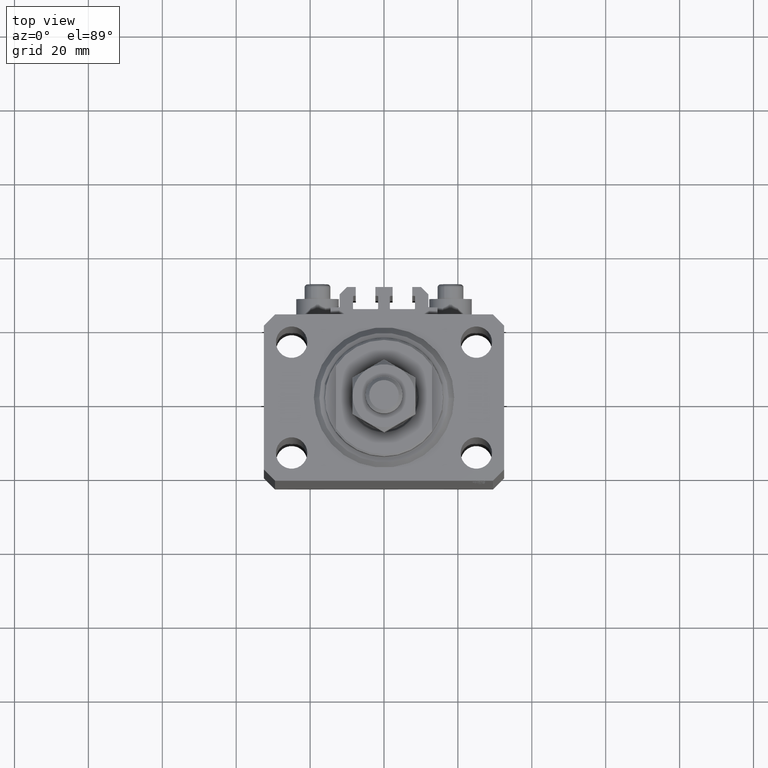
[diagram: clean part render]
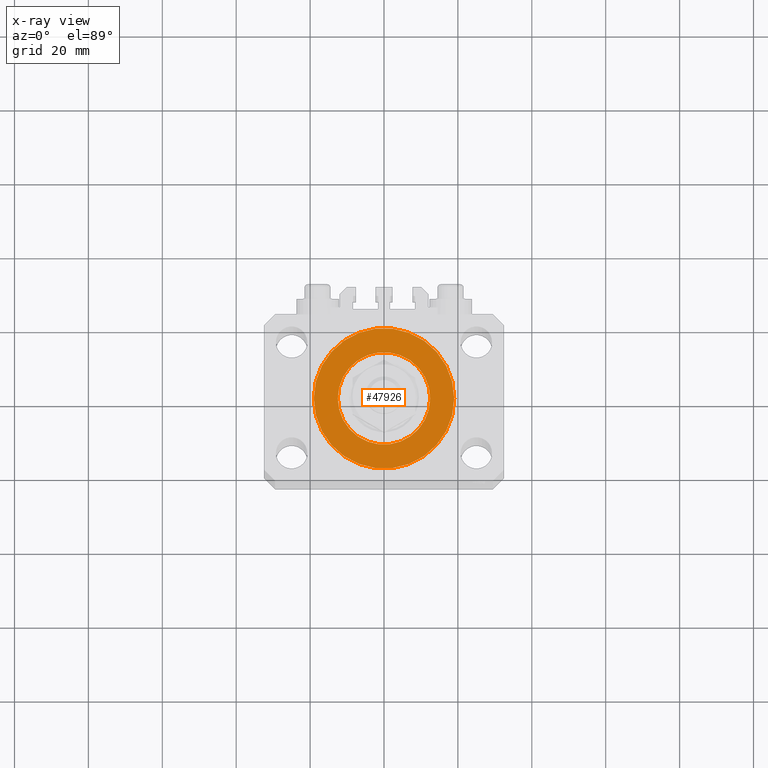
[diagram: x-ray — body ghosted, one internal face saturated and labeled with its STEP entity id]
A machine part, top view, then the same camera in x-ray: the body is ghosted and one INTERNAL B-rep face — a face not visible from any outside direction — is saturated and labeled: STEP entity #47926.
In plain terms, the highlighted planar face has unit normal (0, 0, 1).
Its self-contained STEP definition (entity closure, byte-faithful):
#50 = DIRECTION ( 'NONE',  ( 0.000000000000000000, 0.000000000000000000, 1.000000000000000000 ) ) ;
#1950 = DIRECTION ( 'NONE',  ( 0.000000000000000000, 0.000000000000000000, 1.000000000000000000 ) ) ;
#2215 = EDGE_CURVE ( 'NONE', #17318, #8432, #46412, .T. ) ;
#2605 = DIRECTION ( 'NONE',  ( 1.000000000000000000, 0.000000000000000000, 0.000000000000000000 ) ) ;
#3759 = CARTESIAN_POINT ( 'NONE',  ( 0.000000000000000000, 0.000000000000000000, -13.99999999999999822 ) ) ;
#6311 = DIRECTION ( 'NONE',  ( 0.000000000000000000, 0.000000000000000000, 1.000000000000000000 ) ) ;
#7948 = CIRCLE ( 'NONE', #47441, 12.50000000000000000 ) ;
#8432 = VERTEX_POINT ( 'NONE', #17461 ) ;
#9690 = AXIS2_PLACEMENT_3D ( 'NONE', #34755, #41016, #48681 ) ;
#9877 = FACE_OUTER_BOUND ( 'NONE', #25714, .T. ) ;
#11176 = DIRECTION ( 'NONE',  ( 1.000000000000000000, 0.000000000000000000, 0.000000000000000000 ) ) ;
#11831 = EDGE_CURVE ( 'NONE', #8432, #17318, #19192, .T. ) ;
#14063 = VERTEX_POINT ( 'NONE', #41044 ) ;
#16545 = CARTESIAN_POINT ( 'NONE',  ( 0.000000000000000000, 0.000000000000000000, -14.00000000000000000 ) ) ;
#16948 = AXIS2_PLACEMENT_3D ( 'NONE', #16545, #1950, #32354 ) ;
#17199 = AXIS2_PLACEMENT_3D ( 'NONE', #42075, #33932, #46021 ) ;
#17318 = VERTEX_POINT ( 'NONE', #37481 ) ;
#17461 = CARTESIAN_POINT ( 'NONE',  ( -19.00000000000000000, 2.326828918379970970E-15, -14.00000000000000000 ) ) ;
#19192 = CIRCLE ( 'NONE', #9690, 19.00000000000000000 ) ;
#20737 = PLANE ( 'NONE',  #16948 ) ;
#21381 = CARTESIAN_POINT ( 'NONE',  ( 0.000000000000000000, 0.000000000000000000, -13.99999999999999822 ) ) ;
#23797 = AXIS2_PLACEMENT_3D ( 'NONE', #21381, #6311, #2605 ) ;
#24810 = EDGE_LOOP ( 'NONE', ( #29215, #32987 ) ) ;
#25246 = ORIENTED_EDGE ( 'NONE', *, *, #11831, .T. ) ;
#25714 = EDGE_LOOP ( 'NONE', ( #36365, #25246 ) ) ;
#29215 = ORIENTED_EDGE ( 'NONE', *, *, #36423, .F. ) ;
#32354 = DIRECTION ( 'NONE',  ( 1.000000000000000000, 0.000000000000000000, -0.000000000000000000 ) ) ;
#32987 = ORIENTED_EDGE ( 'NONE', *, *, #35567, .F. ) ;
#33932 = DIRECTION ( 'NONE',  ( 0.000000000000000000, 0.000000000000000000, 1.000000000000000000 ) ) ;
#34755 = CARTESIAN_POINT ( 'NONE',  ( 0.000000000000000000, 0.000000000000000000, -14.00000000000000000 ) ) ;
#35567 = EDGE_CURVE ( 'NONE', #14063, #45554, #7948, .T. ) ;
#36365 = ORIENTED_EDGE ( 'NONE', *, *, #2215, .T. ) ;
#36423 = EDGE_CURVE ( 'NONE', #45554, #14063, #44335, .T. ) ;
#37481 = CARTESIAN_POINT ( 'NONE',  ( 19.00000000000000000, 0.000000000000000000, -14.00000000000000000 ) ) ;
#39287 = FACE_BOUND ( 'NONE', #24810, .T. ) ;
#41016 = DIRECTION ( 'NONE',  ( 0.000000000000000000, 0.000000000000000000, 1.000000000000000000 ) ) ;
#41044 = CARTESIAN_POINT ( 'NONE',  ( -12.50000000000000000, 1.530808498934191521E-15, -13.99999999999999822 ) ) ;
#42075 = CARTESIAN_POINT ( 'NONE',  ( 0.000000000000000000, 0.000000000000000000, -14.00000000000000000 ) ) ;
#43666 = CARTESIAN_POINT ( 'NONE',  ( 12.50000000000000000, 0.000000000000000000, -13.99999999999999822 ) ) ;
#44335 = CIRCLE ( 'NONE', #23797, 12.50000000000000000 ) ;
#45554 = VERTEX_POINT ( 'NONE', #43666 ) ;
#46021 = DIRECTION ( 'NONE',  ( 1.000000000000000000, 0.000000000000000000, 0.000000000000000000 ) ) ;
#46412 = CIRCLE ( 'NONE', #17199, 19.00000000000000000 ) ;
#47441 = AXIS2_PLACEMENT_3D ( 'NONE', #3759, #50, #11176 ) ;
#47926 = ADVANCED_FACE ( 'NONE', ( #39287, #9877 ), #20737, .T. ) ;
#48681 = DIRECTION ( 'NONE',  ( 1.000000000000000000, 0.000000000000000000, 0.000000000000000000 ) ) ;